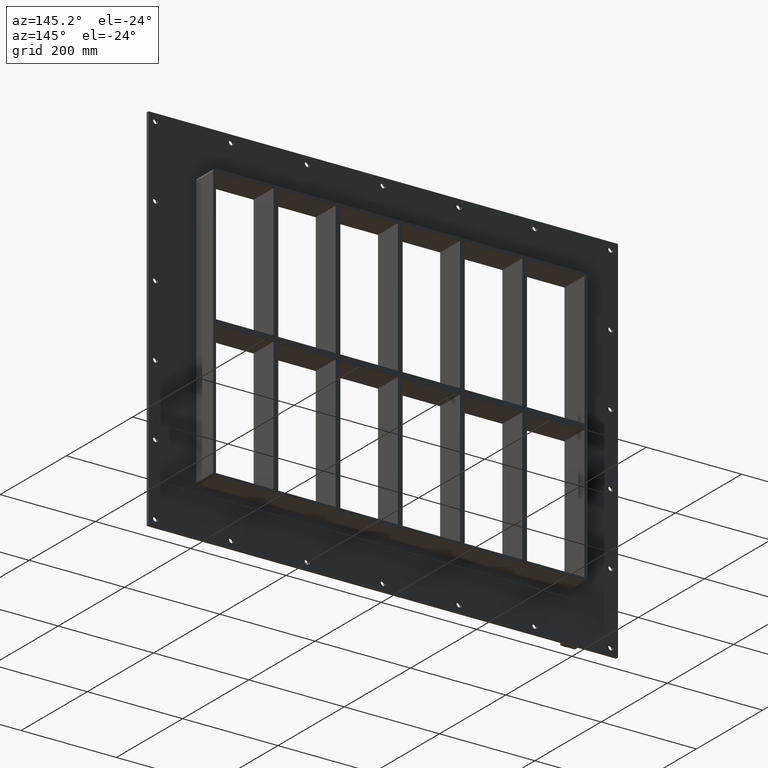
[diagram: clean part render]
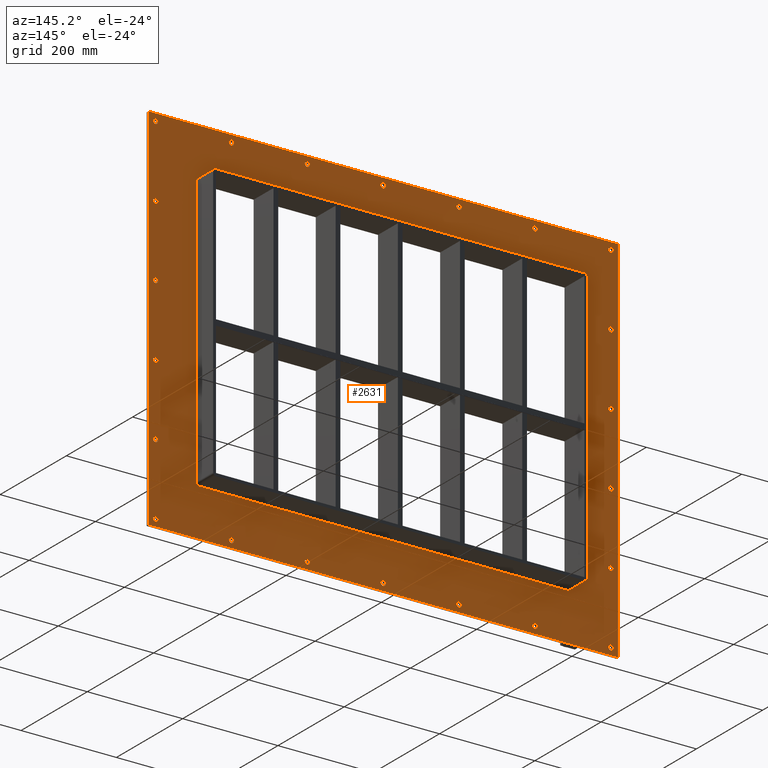
[diagram: same view with one face highlighted and labeled with its STEP entity id]
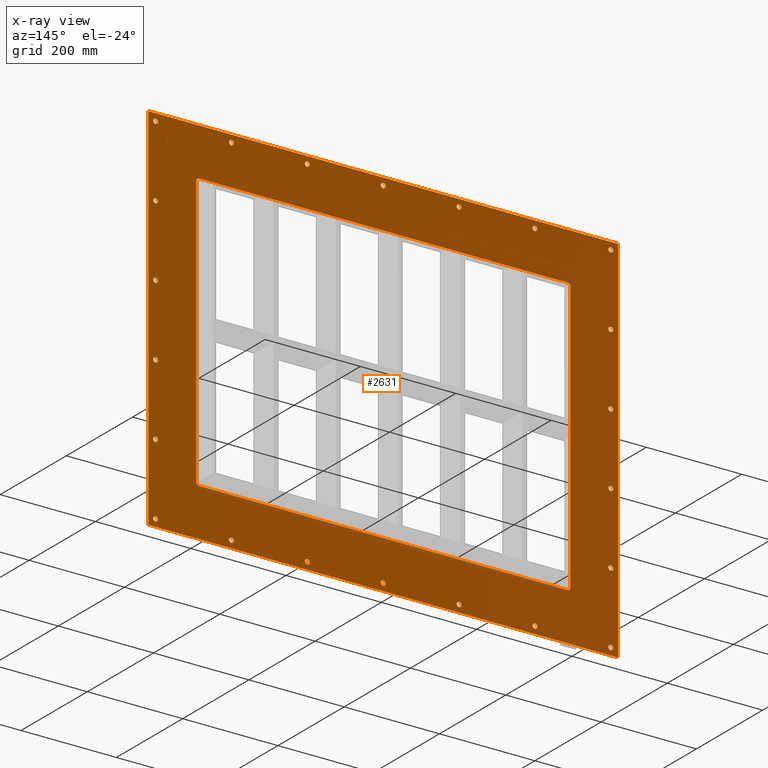
[diagram: x-ray of the same camera — body ghosted, the highlighted face saturated]
A machine part, auxiliary view. The second image highlights one B-rep face of the part: STEP entity #2631.
The next image is the same camera in x-ray: the body ghosted, the highlighted face saturated — about 0% of this face is hidden behind the body in this view.
In plain terms, the highlighted planar face has unit normal (0, 1, 0).
Its self-contained STEP definition (entity closure, byte-faithful):
#73=CARTESIAN_POINT('',(-482.75000000000023,5.999999999999943,-375.00000000000011));
#74=VERTEX_POINT('',#73);
#75=CARTESIAN_POINT('',(-477.50000000000023,5.999999999999943,-375.00000000000011));
#76=DIRECTION('',(0.0,-1.0,0.0));
#77=DIRECTION('',(1.0,0.0,0.0));
#78=AXIS2_PLACEMENT_3D('',#75,#76,#77);
#79=CIRCLE('',#78,5.25);
#80=EDGE_CURVE('',#74,#74,#79,.T.);
#101=CARTESIAN_POINT('',(472.44999999999976,5.999999999999943,-225.00000000000014));
#102=VERTEX_POINT('',#101);
#103=CARTESIAN_POINT('',(477.69999999999976,5.999999999999943,-225.00000000000014));
#104=DIRECTION('',(0.0,-1.0,0.0));
#105=DIRECTION('',(1.0,0.0,0.0));
#106=AXIS2_PLACEMENT_3D('',#103,#104,#105);
#107=CIRCLE('',#106,5.25);
#108=EDGE_CURVE('',#102,#102,#107,.T.);
#129=CARTESIAN_POINT('',(-482.75000000000023,5.999999999999943,-225.00000000000014));
#130=VERTEX_POINT('',#129);
#131=CARTESIAN_POINT('',(-477.50000000000023,5.999999999999943,-225.00000000000014));
#132=DIRECTION('',(0.0,-1.0,0.0));
#133=DIRECTION('',(1.0,0.0,0.0));
#134=AXIS2_PLACEMENT_3D('',#131,#132,#133);
#135=CIRCLE('',#134,5.25);
#136=EDGE_CURVE('',#130,#130,#135,.T.);
#157=CARTESIAN_POINT('',(472.44999999999976,5.999999999999943,-75.000000000000142));
#158=VERTEX_POINT('',#157);
#159=CARTESIAN_POINT('',(477.69999999999976,5.999999999999943,-75.000000000000142));
#160=DIRECTION('',(0.0,-1.0,0.0));
#161=DIRECTION('',(1.0,0.0,0.0));
#162=AXIS2_PLACEMENT_3D('',#159,#160,#161);
#163=CIRCLE('',#162,5.25);
#164=EDGE_CURVE('',#158,#158,#163,.T.);
#185=CARTESIAN_POINT('',(-482.75000000000023,5.999999999999943,-75.000000000000142));
#186=VERTEX_POINT('',#185);
#187=CARTESIAN_POINT('',(-477.50000000000023,5.999999999999943,-75.000000000000142));
#188=DIRECTION('',(0.0,-1.0,0.0));
#189=DIRECTION('',(1.0,0.0,0.0));
#190=AXIS2_PLACEMENT_3D('',#187,#188,#189);
#191=CIRCLE('',#190,5.25);
#192=EDGE_CURVE('',#186,#186,#191,.T.);
#213=CARTESIAN_POINT('',(472.44999999999976,5.999999999999943,74.999999999999858));
#214=VERTEX_POINT('',#213);
#215=CARTESIAN_POINT('',(477.69999999999976,5.999999999999943,74.999999999999858));
#216=DIRECTION('',(0.0,-1.0,0.0));
#217=DIRECTION('',(1.0,0.0,0.0));
#218=AXIS2_PLACEMENT_3D('',#215,#216,#217);
#219=CIRCLE('',#218,5.25);
#220=EDGE_CURVE('',#214,#214,#219,.T.);
#241=CARTESIAN_POINT('',(-482.75000000000023,5.999999999999943,74.999999999999858));
#242=VERTEX_POINT('',#241);
#243=CARTESIAN_POINT('',(-477.50000000000023,5.999999999999943,74.999999999999858));
#244=DIRECTION('',(0.0,-1.0,0.0));
#245=DIRECTION('',(1.0,0.0,0.0));
#246=AXIS2_PLACEMENT_3D('',#243,#244,#245);
#247=CIRCLE('',#246,5.25);
#248=EDGE_CURVE('',#242,#242,#247,.T.);
#269=CARTESIAN_POINT('',(472.44999999999976,5.999999999999943,224.99999999999986));
#270=VERTEX_POINT('',#269);
#271=CARTESIAN_POINT('',(477.69999999999976,5.999999999999943,224.99999999999986));
#272=DIRECTION('',(0.0,-1.0,0.0));
#273=DIRECTION('',(1.0,0.0,0.0));
#274=AXIS2_PLACEMENT_3D('',#271,#272,#273);
#275=CIRCLE('',#274,5.25);
#276=EDGE_CURVE('',#270,#270,#275,.T.);
#297=CARTESIAN_POINT('',(-482.75000000000023,5.999999999999943,224.99999999999986));
#298=VERTEX_POINT('',#297);
#299=CARTESIAN_POINT('',(-477.50000000000023,5.999999999999943,224.99999999999986));
#300=DIRECTION('',(0.0,-1.0,0.0));
#301=DIRECTION('',(1.0,0.0,0.0));
#302=AXIS2_PLACEMENT_3D('',#299,#300,#301);
#303=CIRCLE('',#302,5.25);
#304=EDGE_CURVE('',#298,#298,#303,.T.);
#325=CARTESIAN_POINT('',(-323.55000000000018,5.999999999999943,374.99999999999989));
#326=VERTEX_POINT('',#325);
#327=CARTESIAN_POINT('',(-318.30000000000018,5.999999999999943,374.99999999999989));
#328=DIRECTION('',(0.0,-1.0,0.0));
#329=DIRECTION('',(1.0,0.0,0.0));
#330=AXIS2_PLACEMENT_3D('',#327,#328,#329);
#331=CIRCLE('',#330,5.25);
#332=EDGE_CURVE('',#326,#326,#331,.T.);
#353=CARTESIAN_POINT('',(-323.55000000000018,5.999999999999943,-375.00000000000011));
#354=VERTEX_POINT('',#353);
#355=CARTESIAN_POINT('',(-318.30000000000018,5.999999999999943,-375.00000000000011));
#356=DIRECTION('',(0.0,-1.0,0.0));
#357=DIRECTION('',(1.0,0.0,0.0));
#358=AXIS2_PLACEMENT_3D('',#355,#356,#357);
#359=CIRCLE('',#358,5.25);
#360=EDGE_CURVE('',#354,#354,#359,.T.);
#381=CARTESIAN_POINT('',(-164.35000000000025,5.999999999999943,374.99999999999989));
#382=VERTEX_POINT('',#381);
#383=CARTESIAN_POINT('',(-159.10000000000022,5.999999999999943,374.99999999999989));
#384=DIRECTION('',(0.0,-1.0,0.0));
#385=DIRECTION('',(1.0,0.0,0.0));
#386=AXIS2_PLACEMENT_3D('',#383,#384,#385);
#387=CIRCLE('',#386,5.25);
#388=EDGE_CURVE('',#382,#382,#387,.T.);
#409=CARTESIAN_POINT('',(-164.35000000000025,5.999999999999943,-375.00000000000011));
#410=VERTEX_POINT('',#409);
#411=CARTESIAN_POINT('',(-159.10000000000022,5.999999999999943,-375.00000000000011));
#412=DIRECTION('',(0.0,-1.0,0.0));
#413=DIRECTION('',(1.0,0.0,0.0));
#414=AXIS2_PLACEMENT_3D('',#411,#412,#413);
#415=CIRCLE('',#414,5.25);
#416=EDGE_CURVE('',#410,#410,#415,.T.);
#437=CARTESIAN_POINT('',(-5.150000000000201,5.999999999999943,374.99999999999989));
#438=VERTEX_POINT('',#437);
#439=CARTESIAN_POINT('',(0.099999999999785,5.999999999999943,374.99999999999989));
#440=DIRECTION('',(0.0,-1.0,0.0));
#441=DIRECTION('',(1.0,0.0,0.0));
#442=AXIS2_PLACEMENT_3D('',#439,#440,#441);
#443=CIRCLE('',#442,5.25);
#444=EDGE_CURVE('',#438,#438,#443,.T.);
#465=CARTESIAN_POINT('',(-5.150000000000201,5.999999999999943,-375.00000000000011));
#466=VERTEX_POINT('',#465);
#467=CARTESIAN_POINT('',(0.099999999999785,5.999999999999943,-375.00000000000011));
#468=DIRECTION('',(0.0,-1.0,0.0));
#469=DIRECTION('',(1.0,0.0,0.0));
#470=AXIS2_PLACEMENT_3D('',#467,#468,#469);
#471=CIRCLE('',#470,5.25);
#472=EDGE_CURVE('',#466,#466,#471,.T.);
#493=CARTESIAN_POINT('',(154.04999999999976,5.999999999999943,374.99999999999989));
#494=VERTEX_POINT('',#493);
#495=CARTESIAN_POINT('',(159.29999999999973,5.999999999999943,374.99999999999989));
#496=DIRECTION('',(0.0,-1.0,0.0));
#497=DIRECTION('',(1.0,0.0,0.0));
#498=AXIS2_PLACEMENT_3D('',#495,#496,#497);
#499=CIRCLE('',#498,5.25);
#500=EDGE_CURVE('',#494,#494,#499,.T.);
#521=CARTESIAN_POINT('',(154.04999999999976,5.999999999999943,-375.00000000000011));
#522=VERTEX_POINT('',#521);
#523=CARTESIAN_POINT('',(159.29999999999973,5.999999999999943,-375.00000000000011));
#524=DIRECTION('',(0.0,-1.0,0.0));
#525=DIRECTION('',(1.0,0.0,0.0));
#526=AXIS2_PLACEMENT_3D('',#523,#524,#525);
#527=CIRCLE('',#526,5.25);
#528=EDGE_CURVE('',#522,#522,#527,.T.);
#549=CARTESIAN_POINT('',(313.24999999999977,5.999999999999943,374.99999999999989));
#550=VERTEX_POINT('',#549);
#551=CARTESIAN_POINT('',(318.49999999999972,5.999999999999943,374.99999999999989));
#552=DIRECTION('',(0.0,-1.0,0.0));
#553=DIRECTION('',(1.0,0.0,0.0));
#554=AXIS2_PLACEMENT_3D('',#551,#552,#553);
#555=CIRCLE('',#554,5.25);
#556=EDGE_CURVE('',#550,#550,#555,.T.);
#577=CARTESIAN_POINT('',(313.24999999999977,5.999999999999943,-375.00000000000011));
#578=VERTEX_POINT('',#577);
#579=CARTESIAN_POINT('',(318.49999999999972,5.999999999999943,-375.00000000000011));
#580=DIRECTION('',(0.0,-1.0,0.0));
#581=DIRECTION('',(1.0,0.0,0.0));
#582=AXIS2_PLACEMENT_3D('',#579,#580,#581);
#583=CIRCLE('',#582,5.25);
#584=EDGE_CURVE('',#578,#578,#583,.T.);
#605=CARTESIAN_POINT('',(472.44999999999976,5.999999999999943,-375.00000000000011));
#606=VERTEX_POINT('',#605);
#607=CARTESIAN_POINT('',(477.69999999999976,5.999999999999943,-375.00000000000011));
#608=DIRECTION('',(0.0,-1.0,0.0));
#609=DIRECTION('',(1.0,0.0,0.0));
#610=AXIS2_PLACEMENT_3D('',#607,#608,#609);
#611=CIRCLE('',#610,5.25);
#612=EDGE_CURVE('',#606,#606,#611,.T.);
#633=CARTESIAN_POINT('',(-482.75000000000023,5.999999999999943,374.99999999999989));
#634=VERTEX_POINT('',#633);
#635=CARTESIAN_POINT('',(-477.50000000000023,5.999999999999943,374.99999999999989));
#636=DIRECTION('',(0.0,-1.0,0.0));
#637=DIRECTION('',(1.0,0.0,0.0));
#638=AXIS2_PLACEMENT_3D('',#635,#636,#637);
#639=CIRCLE('',#638,5.25);
#640=EDGE_CURVE('',#634,#634,#639,.T.);
#661=CARTESIAN_POINT('',(472.44999999999976,5.999999999999943,374.99999999999989));
#662=VERTEX_POINT('',#661);
#663=CARTESIAN_POINT('',(477.69999999999976,5.999999999999943,374.99999999999989));
#664=DIRECTION('',(0.0,-1.0,0.0));
#665=DIRECTION('',(1.0,0.0,0.0));
#666=AXIS2_PLACEMENT_3D('',#663,#664,#665);
#667=CIRCLE('',#666,5.25);
#668=EDGE_CURVE('',#662,#662,#667,.T.);
#2456=CARTESIAN_POINT('',(0.0,6.000000000000001,-3.864708E-014));
#2457=DIRECTION('',(0.0,1.0,0.0));
#2458=DIRECTION('',(0.0,0.0,1.0));
#2459=AXIS2_PLACEMENT_3D('',#2456,#2457,#2458);
#2460=PLANE('',#2459);
#2461=CARTESIAN_POINT('',(-492.50000000000006,6.000000000000001,390.00000000000006));
#2462=VERTEX_POINT('',#2461);
#2463=CARTESIAN_POINT('',(492.50000000000006,6.000000000000001,390.00000000000006));
#2464=VERTEX_POINT('',#2463);
#2465=CARTESIAN_POINT('',(-492.50000000000006,6.000000000000001,390.00000000000006));
#2466=DIRECTION('',(1.0,0.0,0.0));
#2467=VECTOR('',#2466,985.00000000000011);
#2468=LINE('',#2465,#2467);
#2469=EDGE_CURVE('',#2462,#2464,#2468,.T.);
#2470=ORIENTED_EDGE('',*,*,#2469,.T.);
#2471=CARTESIAN_POINT('',(492.50000000000006,6.000000000000001,-390.00000000000023));
#2472=VERTEX_POINT('',#2471);
#2473=CARTESIAN_POINT('',(492.50000000000006,6.000000000000001,390.00000000000006));
#2474=DIRECTION('',(0.0,0.0,-1.0));
#2475=VECTOR('',#2474,780.00000000000023);
#2476=LINE('',#2473,#2475);
#2477=EDGE_CURVE('',#2464,#2472,#2476,.T.);
#2478=ORIENTED_EDGE('',*,*,#2477,.T.);
#2479=CARTESIAN_POINT('',(-492.50000000000006,6.000000000000001,-390.00000000000023));
#2480=VERTEX_POINT('',#2479);
#2481=CARTESIAN_POINT('',(492.50000000000006,6.000000000000001,-390.00000000000011));
#2482=DIRECTION('',(-1.0,0.0,0.0));
#2483=VECTOR('',#2482,985.00000000000011);
#2484=LINE('',#2481,#2483);
#2485=EDGE_CURVE('',#2472,#2480,#2484,.T.);
#2486=ORIENTED_EDGE('',*,*,#2485,.T.);
#2487=CARTESIAN_POINT('',(-492.50000000000006,6.000000000000001,-390.00000000000011));
#2488=DIRECTION('',(0.0,0.0,1.0));
#2489=VECTOR('',#2488,780.00000000000023);
#2490=LINE('',#2487,#2489);
#2491=EDGE_CURVE('',#2480,#2462,#2490,.T.);
#2492=ORIENTED_EDGE('',*,*,#2491,.T.);
#2493=EDGE_LOOP('',(#2470,#2478,#2486,#2492));
#2494=FACE_OUTER_BOUND('',#2493,.T.);
#2495=ORIENTED_EDGE('',*,*,#80,.T.);
#2496=EDGE_LOOP('',(#2495));
#2497=FACE_BOUND('',#2496,.T.);
#2498=ORIENTED_EDGE('',*,*,#108,.T.);
#2499=EDGE_LOOP('',(#2498));
#2500=FACE_BOUND('',#2499,.T.);
#2501=ORIENTED_EDGE('',*,*,#136,.T.);
#2502=EDGE_LOOP('',(#2501));
#2503=FACE_BOUND('',#2502,.T.);
#2504=ORIENTED_EDGE('',*,*,#164,.T.);
#2505=EDGE_LOOP('',(#2504));
#2506=FACE_BOUND('',#2505,.T.);
#2507=ORIENTED_EDGE('',*,*,#192,.T.);
#2508=EDGE_LOOP('',(#2507));
#2509=FACE_BOUND('',#2508,.T.);
#2510=ORIENTED_EDGE('',*,*,#220,.T.);
#2511=EDGE_LOOP('',(#2510));
#2512=FACE_BOUND('',#2511,.T.);
#2513=ORIENTED_EDGE('',*,*,#248,.T.);
#2514=EDGE_LOOP('',(#2513));
#2515=FACE_BOUND('',#2514,.T.);
#2516=ORIENTED_EDGE('',*,*,#276,.T.);
#2517=EDGE_LOOP('',(#2516));
#2518=FACE_BOUND('',#2517,.T.);
#2519=ORIENTED_EDGE('',*,*,#304,.T.);
#2520=EDGE_LOOP('',(#2519));
#2521=FACE_BOUND('',#2520,.T.);
#2522=ORIENTED_EDGE('',*,*,#332,.T.);
#2523=EDGE_LOOP('',(#2522));
#2524=FACE_BOUND('',#2523,.T.);
#2525=ORIENTED_EDGE('',*,*,#360,.T.);
#2526=EDGE_LOOP('',(#2525));
#2527=FACE_BOUND('',#2526,.T.);
#2528=ORIENTED_EDGE('',*,*,#388,.T.);
#2529=EDGE_LOOP('',(#2528));
#2530=FACE_BOUND('',#2529,.T.);
#2531=ORIENTED_EDGE('',*,*,#416,.T.);
#2532=EDGE_LOOP('',(#2531));
#2533=FACE_BOUND('',#2532,.T.);
#2534=ORIENTED_EDGE('',*,*,#444,.T.);
#2535=EDGE_LOOP('',(#2534));
#2536=FACE_BOUND('',#2535,.T.);
#2537=ORIENTED_EDGE('',*,*,#472,.T.);
#2538=EDGE_LOOP('',(#2537));
#2539=FACE_BOUND('',#2538,.T.);
#2540=ORIENTED_EDGE('',*,*,#500,.T.);
#2541=EDGE_LOOP('',(#2540));
#2542=FACE_BOUND('',#2541,.T.);
#2543=ORIENTED_EDGE('',*,*,#528,.T.);
#2544=EDGE_LOOP('',(#2543));
#2545=FACE_BOUND('',#2544,.T.);
#2546=ORIENTED_EDGE('',*,*,#556,.T.);
#2547=EDGE_LOOP('',(#2546));
#2548=FACE_BOUND('',#2547,.T.);
#2549=ORIENTED_EDGE('',*,*,#584,.T.);
#2550=EDGE_LOOP('',(#2549));
#2551=FACE_BOUND('',#2550,.T.);
#2552=ORIENTED_EDGE('',*,*,#612,.T.);
#2553=EDGE_LOOP('',(#2552));
#2554=FACE_BOUND('',#2553,.T.);
#2555=ORIENTED_EDGE('',*,*,#640,.T.);
#2556=EDGE_LOOP('',(#2555));
#2557=FACE_BOUND('',#2556,.T.);
#2558=ORIENTED_EDGE('',*,*,#668,.T.);
#2559=EDGE_LOOP('',(#2558));
#2560=FACE_BOUND('',#2559,.T.);
#2561=CARTESIAN_POINT('',(-392.50000000000006,6.000000000000001,284.0));
#2562=VERTEX_POINT('',#2561);
#2563=CARTESIAN_POINT('',(-386.50000000000006,6.000000000000001,290.0));
#2564=VERTEX_POINT('',#2563);
#2565=CARTESIAN_POINT('',(-386.50000000000006,6.000000000000001,284.0));
#2566=DIRECTION('',(0.0,1.0,0.0));
#2567=DIRECTION('',(-0.707106781186543,0.0,0.707106781186552));
#2568=AXIS2_PLACEMENT_3D('',#2565,#2566,#2567);
#2569=CIRCLE('',#2568,6.000000000000001);
#2570=EDGE_CURVE('',#2562,#2564,#2569,.T.);
#2571=ORIENTED_EDGE('',*,*,#2570,.F.);
#2572=CARTESIAN_POINT('',(-392.50000000000006,6.000000000000001,-284.00000000000006));
#2573=VERTEX_POINT('',#2572);
#2574=CARTESIAN_POINT('',(-392.50000000000006,6.000000000000001,-284.00000000000006));
#2575=DIRECTION('',(0.0,0.0,1.0));
#2576=VECTOR('',#2575,568.0);
#2577=LINE('',#2574,#2576);
#2578=EDGE_CURVE('',#2573,#2562,#2577,.T.);
#2579=ORIENTED_EDGE('',*,*,#2578,.F.);
#2580=CARTESIAN_POINT('',(-386.50000000000006,6.000000000000001,-290.00000000000006));
#2581=VERTEX_POINT('',#2580);
#2582=CARTESIAN_POINT('',(-386.50000000000006,6.000000000000001,-284.00000000000006));
#2583=DIRECTION('',(0.0,1.0,0.0));
#2584=DIRECTION('',(-0.707106781186548,0.0,-0.707106781186548));
#2585=AXIS2_PLACEMENT_3D('',#2582,#2583,#2584);
#2586=CIRCLE('',#2585,6.000000000000002);
#2587=EDGE_CURVE('',#2581,#2573,#2586,.T.);
#2588=ORIENTED_EDGE('',*,*,#2587,.F.);
#2589=CARTESIAN_POINT('',(386.50000000000006,6.000000000000001,-290.00000000000006));
#2590=VERTEX_POINT('',#2589);
#2591=CARTESIAN_POINT('',(386.50000000000006,6.000000000000001,-290.00000000000006));
#2592=DIRECTION('',(-1.0,0.0,0.0));
#2593=VECTOR('',#2592,773.0);
#2594=LINE('',#2591,#2593);
#2595=EDGE_CURVE('',#2590,#2581,#2594,.T.);
#2596=ORIENTED_EDGE('',*,*,#2595,.F.);
#2597=CARTESIAN_POINT('',(392.50000000000006,6.000000000000001,-284.0));
#2598=VERTEX_POINT('',#2597);
#2599=CARTESIAN_POINT('',(386.50000000000006,6.000000000000001,-284.0));
#2600=DIRECTION('',(0.0,1.0,0.0));
#2601=DIRECTION('',(0.707106781186543,0.0,-0.707106781186552));
#2602=AXIS2_PLACEMENT_3D('',#2599,#2600,#2601);
#2603=CIRCLE('',#2602,6.000000000000001);
#2604=EDGE_CURVE('',#2598,#2590,#2603,.T.);
#2605=ORIENTED_EDGE('',*,*,#2604,.F.);
#2606=CARTESIAN_POINT('',(392.50000000000006,6.000000000000001,284.0));
#2607=VERTEX_POINT('',#2606);
#2608=CARTESIAN_POINT('',(392.50000000000006,6.000000000000001,284.0));
#2609=DIRECTION('',(0.0,0.0,-1.0));
#2610=VECTOR('',#2609,568.0);
#2611=LINE('',#2608,#2610);
#2612=EDGE_CURVE('',#2607,#2598,#2611,.T.);
#2613=ORIENTED_EDGE('',*,*,#2612,.F.);
#2614=CARTESIAN_POINT('',(386.50000000000006,6.000000000000001,290.0));
#2615=VERTEX_POINT('',#2614);
#2616=CARTESIAN_POINT('',(386.50000000000006,6.000000000000001,284.0));
#2617=DIRECTION('',(0.0,1.0,0.0));
#2618=DIRECTION('',(0.707106781186543,0.0,0.707106781186552));
#2619=AXIS2_PLACEMENT_3D('',#2616,#2617,#2618);
#2620=CIRCLE('',#2619,6.000000000000001);
#2621=EDGE_CURVE('',#2615,#2607,#2620,.T.);
#2622=ORIENTED_EDGE('',*,*,#2621,.F.);
#2623=CARTESIAN_POINT('',(-386.50000000000006,6.000000000000001,290.0));
#2624=DIRECTION('',(1.0,0.0,0.0));
#2625=VECTOR('',#2624,773.0);
#2626=LINE('',#2623,#2625);
#2627=EDGE_CURVE('',#2564,#2615,#2626,.T.);
#2628=ORIENTED_EDGE('',*,*,#2627,.F.);
#2629=EDGE_LOOP('',(#2571,#2579,#2588,#2596,#2605,#2613,#2622,#2628));
#2630=FACE_BOUND('',#2629,.T.);
#2631=ADVANCED_FACE('',(#2494,#2497,#2500,#2503,#2506,#2509,#2512,#2515,#2518,#2521,#2524,#2527,#2530,#2533,#2536,#2539,#2542,#2545,#2548,#2551,#2554,#2557,#2560,#2630),#2460,.T.);